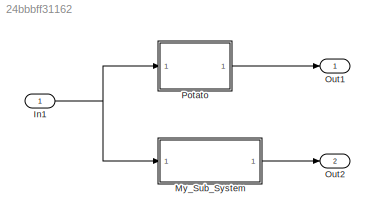
MODEL slx_24bbbff31162
KIND model
CONFIG AbsTol = auto
CONFIG EnableMultiTasking = off
CONFIG FixedStep = auto
CONFIG MaxStep = auto
CONFIG MinStep = auto
CONFIG RelTol = 1e-3
CONFIG SampleTimeConstraint = Unconstrained
CONFIG Solver = VariableStepAuto
CONFIG SolverName = VariableStepAuto
CONFIG StartTime = 0.0
CONFIG StopTime = 10.0
BLOCK [Inport] In1
  IconDisplay = Port number
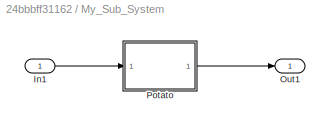
BLOCK [SubSystem] My_Sub_System
  Ports = [1, 1]
  RequestExecContextInheritance = off
  Variant = off
BLOCK [Inport] My_Sub_System/In1
  IconDisplay = Port number
BLOCK [Outport] My_Sub_System/Out1
  IconDisplay = Port number
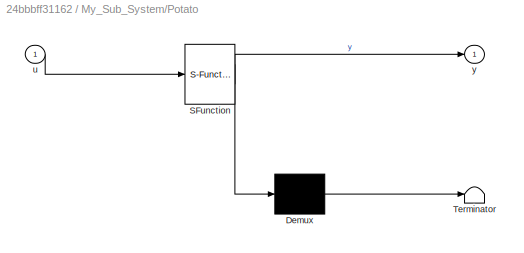
BLOCK [SubSystem] My_Sub_System/Potato
  ErrorFcn = Stateflow.Translate.translate
  PermitHierarchicalResolution = ExplicitOnly
  Ports = [1, 1]
  RequestExecContextInheritance = off
  SFBlockType = MATLAB Function
  TreatAsAtomicUnit = on
  Variant = off
BLOCK [Demux] My_Sub_System/Potato/ Demux 
  Outputs = 1
  Ports = [1, 1]
BLOCK [S-Function] My_Sub_System/Potato/ SFunction 
  EnableBusSupport = off
  FunctionName = sf_sfun
  PortCounts = [1 2]
  Ports = [1, 2]
  SFcnIsStateOwnerBlock = off
  SFunctionDeploymentMode = off
  Tag = Stateflow S-Function test2 1
BLOCK [Terminator] My_Sub_System/Potato/ Terminator 
BLOCK [Inport] My_Sub_System/Potato/u
  IconDisplay = Port number
BLOCK [Outport] My_Sub_System/Potato/y
  IconDisplay = Port number
BLOCK [Outport] Out1
  IconDisplay = Port number
BLOCK [Outport] Out2
  IconDisplay = Port number
  Port = 2
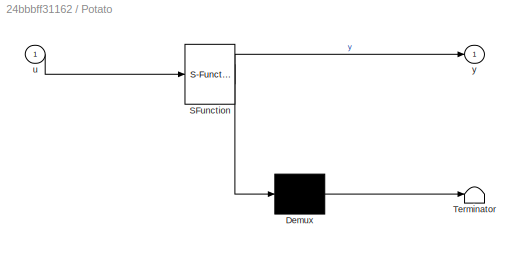
BLOCK [SubSystem] Potato
  ErrorFcn = Stateflow.Translate.translate
  PermitHierarchicalResolution = ExplicitOnly
  Ports = [1, 1]
  RequestExecContextInheritance = off
  SFBlockType = MATLAB Function
  TreatAsAtomicUnit = on
  Variant = off
BLOCK [Demux] Potato/ Demux 
  Outputs = 1
  Ports = [1, 1]
BLOCK [S-Function] Potato/ SFunction 
  EnableBusSupport = off
  FunctionName = sf_sfun
  PortCounts = [1 2]
  Ports = [1, 2]
  SFcnIsStateOwnerBlock = off
  SFunctionDeploymentMode = off
  Tag = Stateflow S-Function test2 2
BLOCK [Terminator] Potato/ Terminator 
BLOCK [Inport] Potato/u
  IconDisplay = Port number
BLOCK [Outport] Potato/y
  IconDisplay = Port number
NET In1:1 -> My_Sub_System:1, Potato:1
LINE My_Sub_System/In1:1 -> My_Sub_System/Potato:1
LINE My_Sub_System/Potato:1 -> My_Sub_System/Out1:1
LINE My_Sub_System:1 -> Out2:1
LINE Potato:1 -> Out1:1
note: NET lines group one-source signal fan-out (src -> all destinations, sorted); 1:1 wires keep LINE
CHART My_Sub_System/Potato states=1 transitions=1
  STATE_LABEL 'eML_blk_kernel()'
  STATE_LABEL 'SCRIPT:\nfunction y = fcn(u)\n% This is in the subsystem\ny = u;\n'
CHART Potato states=1 transitions=1
  STATE_LABEL 'eML_blk_kernel()'
  STATE_LABEL 'SCRIPT:\nfunction y = fcn(u)\n% This is in test2\ny = u;\n'
